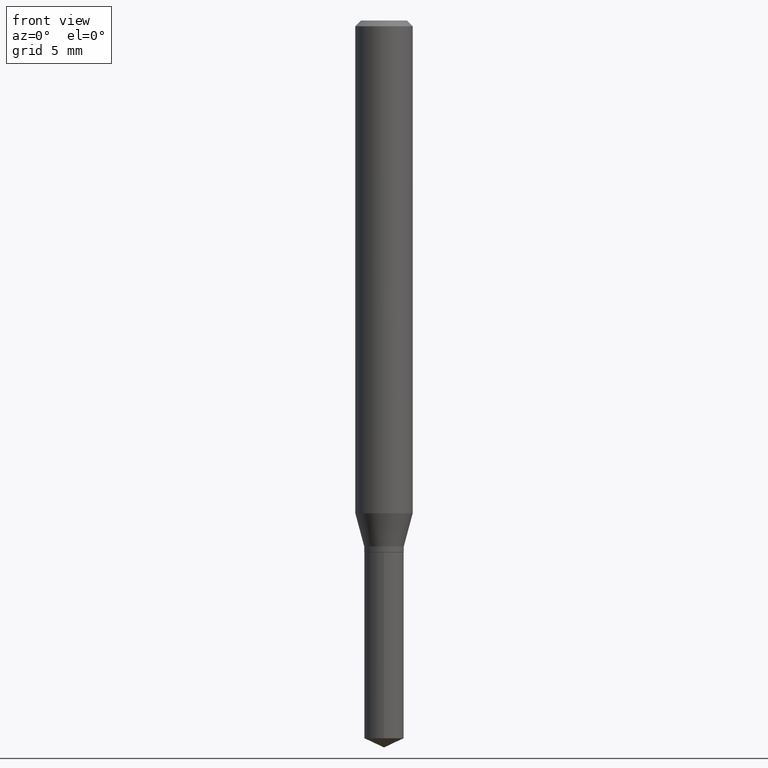
[diagram: clean part render]
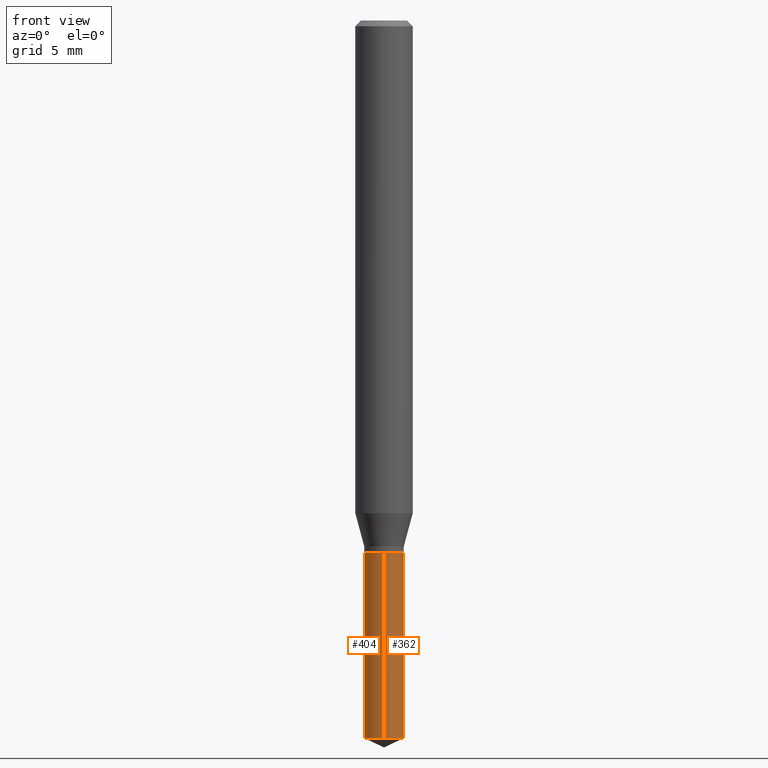
[diagram: same view with one multi-face feature highlighted, each face labeled with its STEP entity id]
A machine part, front view. The highlighted faces form ONE feature: a constant-radius fillet chain: 2 tangent blend faces with common blend radius 1.0351 mm. The faces share edges in the B-rep.
Their STEP definitions:
[1] entity #404 (Cylinder):
#1 = DIRECTION ( 'NONE',  ( -6.982962677686265922E-15, -1.000000000000000000, 3.351960728422408753E-15 ) ) ;
#5 = DIRECTION ( 'NONE',  ( -6.982962677686265922E-15, -1.000000000000000000, 6.703921456844817506E-15 ) ) ;
#9 = EDGE_CURVE ( 'NONE', #41, #119, #343, .T. ) ;
#27 = EDGE_CURVE ( 'NONE', #302, #35, #271, .T. ) ;
#35 = VERTEX_POINT ( 'NONE', #304 ) ;
#40 = CARTESIAN_POINT ( 'NONE',  ( 3.612193201683081451E-29, -5.157265401199855389E-15, -1.477097962930183694 ) ) ;
#41 = VERTEX_POINT ( 'NONE', #457 ) ;
#54 = VECTOR ( 'NONE', #434, 39.37007874015748143 ) ;
#56 = CARTESIAN_POINT ( 'NONE',  ( 2.676565608369631794E-29, -3.821426325363822773E-15, -1.094499999999999806 ) ) ;
#80 = DIRECTION ( 'NONE',  ( -2.445458899330790108E-29, 3.491495526022433599E-15, 1.000000000000000000 ) ) ;
#85 = ORIENTED_EDGE ( 'NONE', *, *, #27, .T. ) ;
#91 = CARTESIAN_POINT ( 'NONE',  ( -2.845557291156885649E-16, -0.04075000000000382483, -1.094499999999999806 ) ) ;
#93 = CARTESIAN_POINT ( 'NONE',  ( 2.895461648222769761E-16, 0.04074999999999485284, -1.477097962930183916 ) ) ;
#113 = DIRECTION ( 'NONE',  ( -2.445458899330790108E-29, 3.491495526022433205E-15, 1.000000000000000000 ) ) ;
#119 = VERTEX_POINT ( 'NONE', #91 ) ;
#131 = CYLINDRICAL_SURFACE ( 'NONE', #346, 0.04075000000000000150 ) ;
#135 = AXIS2_PLACEMENT_3D ( 'NONE', #40, #148, #5 ) ;
#148 = DIRECTION ( 'NONE',  ( -2.445458899330790108E-29, 3.491495526022433205E-15, 1.000000000000000000 ) ) ;
#211 = AXIS2_PLACEMENT_3D ( 'NONE', #344, #113, #1 ) ;
#245 = DIRECTION ( 'NONE',  ( -6.982962677686265922E-15, -1.000000000000000000, 3.351960728422408753E-15 ) ) ;
#262 = ORIENTED_EDGE ( 'NONE', *, *, #472, .F. ) ;
#271 = CIRCLE ( 'NONE', #135, 0.04075000000000000150 ) ;
#298 = EDGE_LOOP ( 'NONE', ( #262, #85, #414, #300 ) ) ;
#300 = ORIENTED_EDGE ( 'NONE', *, *, #9, .F. ) ;
#302 = VERTEX_POINT ( 'NONE', #93 ) ;
#304 = CARTESIAN_POINT ( 'NONE',  ( -2.845557291156792958E-16, -0.04075000000000517791, -1.477097962930183472 ) ) ;
#306 = EDGE_CURVE ( 'NONE', #35, #119, #435, .T. ) ;
#329 = VECTOR ( 'NONE', #80, 39.37007874015748143 ) ;
#343 = CIRCLE ( 'NONE', #211, 0.04075000000000000150 ) ;
#344 = CARTESIAN_POINT ( 'NONE',  ( 2.676565608369631794E-29, -3.821426325363822773E-15, -1.094499999999999806 ) ) ;
#346 = AXIS2_PLACEMENT_3D ( 'NONE', #56, #438, #245 ) ;
#363 = LINE ( 'NONE', #478, #54 ) ;
#398 = CARTESIAN_POINT ( 'NONE',  ( -2.845557291156885649E-16, -0.04075000000000382483, -1.094499999999999806 ) ) ;
#400 = FACE_OUTER_BOUND ( 'NONE', #298, .T. ) ;
#404 = ADVANCED_FACE ( 'NONE', ( #400 ), #131, .T. ) ;
#414 = ORIENTED_EDGE ( 'NONE', *, *, #306, .T. ) ;
#434 = DIRECTION ( 'NONE',  ( -2.445458899330790108E-29, 3.491495526022433599E-15, 1.000000000000000000 ) ) ;
#435 = LINE ( 'NONE', #398, #329 ) ;
#438 = DIRECTION ( 'NONE',  ( -2.445458899330790108E-29, 3.491495526022433205E-15, 1.000000000000000000 ) ) ;
#457 = CARTESIAN_POINT ( 'NONE',  ( 2.895461648222769268E-16, 0.04074999999999617817, -1.094500000000000028 ) ) ;
#472 = EDGE_CURVE ( 'NONE', #302, #41, #363, .T. ) ;
#478 = CARTESIAN_POINT ( 'NONE',  ( 2.895461648222675098E-16, 0.04074999999999617817, -1.094500000000000028 ) ) ;
[2] entity #362 (Cylinder):
#18 = DIRECTION ( 'NONE',  ( -6.982962677686265922E-15, -1.000000000000000000, 6.703921456844817506E-15 ) ) ;
#35 = VERTEX_POINT ( 'NONE', #304 ) ;
#41 = VERTEX_POINT ( 'NONE', #457 ) ;
#44 = CARTESIAN_POINT ( 'NONE',  ( 2.676565608369631794E-29, -3.821426325363822773E-15, -1.094499999999999806 ) ) ;
#54 = VECTOR ( 'NONE', #434, 39.37007874015748143 ) ;
#58 = EDGE_CURVE ( 'NONE', #35, #302, #141, .T. ) ;
#74 = AXIS2_PLACEMENT_3D ( 'NONE', #242, #361, #476 ) ;
#80 = DIRECTION ( 'NONE',  ( -2.445458899330790108E-29, 3.491495526022433599E-15, 1.000000000000000000 ) ) ;
#91 = CARTESIAN_POINT ( 'NONE',  ( -2.845557291156885649E-16, -0.04075000000000382483, -1.094499999999999806 ) ) ;
#93 = CARTESIAN_POINT ( 'NONE',  ( 2.895461648222769761E-16, 0.04074999999999485284, -1.477097962930183916 ) ) ;
#119 = VERTEX_POINT ( 'NONE', #91 ) ;
#141 = CIRCLE ( 'NONE', #241, 0.04075000000000000150 ) ;
#194 = DIRECTION ( 'NONE',  ( -2.445458899330790108E-29, 3.491495526022433205E-15, 1.000000000000000000 ) ) ;
#195 = CARTESIAN_POINT ( 'NONE',  ( 3.612193201683081451E-29, -5.157265401199855389E-15, -1.477097962930183694 ) ) ;
#196 = ORIENTED_EDGE ( 'NONE', *, *, #439, .F. ) ;
#229 = FACE_OUTER_BOUND ( 'NONE', #455, .T. ) ;
#241 = AXIS2_PLACEMENT_3D ( 'NONE', #195, #430, #18 ) ;
#242 = CARTESIAN_POINT ( 'NONE',  ( 2.676565608369631794E-29, -3.821426325363822773E-15, -1.094499999999999806 ) ) ;
#248 = AXIS2_PLACEMENT_3D ( 'NONE', #44, #194, #351 ) ;
#257 = ORIENTED_EDGE ( 'NONE', *, *, #58, .T. ) ;
#302 = VERTEX_POINT ( 'NONE', #93 ) ;
#304 = CARTESIAN_POINT ( 'NONE',  ( -2.845557291156792958E-16, -0.04075000000000517791, -1.477097962930183472 ) ) ;
#306 = EDGE_CURVE ( 'NONE', #35, #119, #435, .T. ) ;
#320 = CIRCLE ( 'NONE', #74, 0.04075000000000000150 ) ;
#329 = VECTOR ( 'NONE', #80, 39.37007874015748143 ) ;
#351 = DIRECTION ( 'NONE',  ( -6.982962677686265922E-15, -1.000000000000000000, 3.351960728422408753E-15 ) ) ;
#361 = DIRECTION ( 'NONE',  ( -2.445458899330790108E-29, 3.491495526022433205E-15, 1.000000000000000000 ) ) ;
#362 = ADVANCED_FACE ( 'NONE', ( #229 ), #385, .T. ) ;
#363 = LINE ( 'NONE', #478, #54 ) ;
#385 = CYLINDRICAL_SURFACE ( 'NONE', #248, 0.04075000000000000150 ) ;
#398 = CARTESIAN_POINT ( 'NONE',  ( -2.845557291156885649E-16, -0.04075000000000382483, -1.094499999999999806 ) ) ;
#420 = ORIENTED_EDGE ( 'NONE', *, *, #472, .T. ) ;
#430 = DIRECTION ( 'NONE',  ( -2.445458899330790108E-29, 3.491495526022433205E-15, 1.000000000000000000 ) ) ;
#434 = DIRECTION ( 'NONE',  ( -2.445458899330790108E-29, 3.491495526022433599E-15, 1.000000000000000000 ) ) ;
#435 = LINE ( 'NONE', #398, #329 ) ;
#439 = EDGE_CURVE ( 'NONE', #119, #41, #320, .T. ) ;
#452 = ORIENTED_EDGE ( 'NONE', *, *, #306, .F. ) ;
#455 = EDGE_LOOP ( 'NONE', ( #257, #420, #196, #452 ) ) ;
#457 = CARTESIAN_POINT ( 'NONE',  ( 2.895461648222769268E-16, 0.04074999999999617817, -1.094500000000000028 ) ) ;
#472 = EDGE_CURVE ( 'NONE', #302, #41, #363, .T. ) ;
#476 = DIRECTION ( 'NONE',  ( -6.982962677686265922E-15, -1.000000000000000000, 3.351960728422408753E-15 ) ) ;
#478 = CARTESIAN_POINT ( 'NONE',  ( 2.895461648222675098E-16, 0.04074999999999617817, -1.094500000000000028 ) ) ;